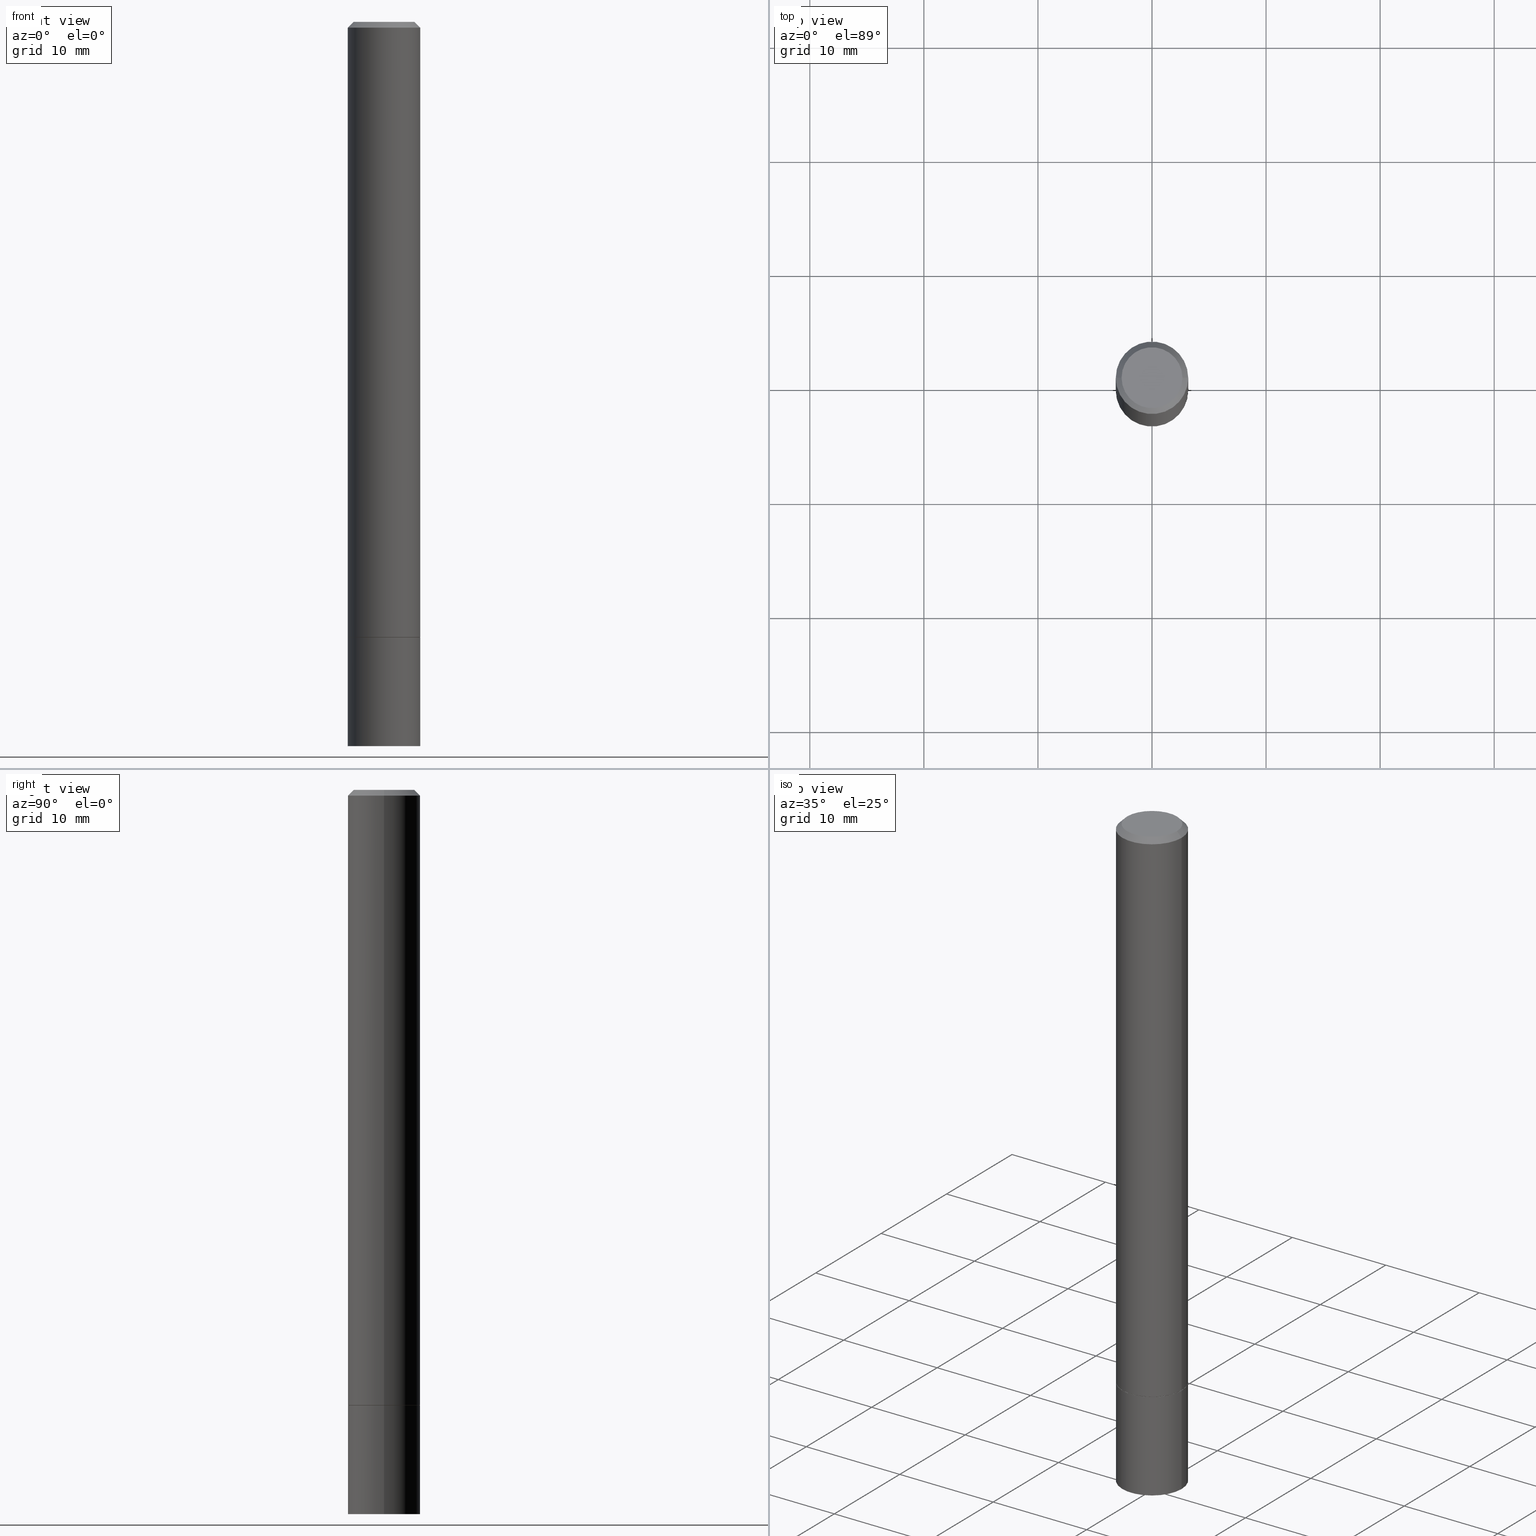
[diagram: canonical four-view strip — front | top / right | iso, engineering-drawing reading convention]
A machine part, canonical four-view strip (front | top / right | iso — engineering-drawing reading convention). The complete STEP part file that produces these views, byte-faithful:
ISO-10303-21;
HEADER;
FILE_DESCRIPTION (( 'STEP AP203' ),
    '1' );
FILE_NAME ('37008.STEP',
    '2024-02-27T20:05:14',
    ( '' ),
    ( '' ),
    'SwSTEP 2.0',
    'SolidWorks 2023',
    '' );
FILE_SCHEMA (( 'CONFIG_CONTROL_DESIGN' ));
ENDSEC;

DATA;
#1 = CYLINDRICAL_SURFACE ( 'NONE', #162, 0.1250000000000000000 ) ;
#2 = EDGE_CURVE ( 'NONE', #270, #155, #89, .T. ) ;
#3 = APPROVAL_DATE_TIME ( #282, #153 ) ;
#4 = CARTESIAN_POINT ( 'NONE',  ( 5.196621213143415268E-29, -7.419397845041685201E-15, -2.125000000000000000 ) ) ;
#5 = PERSON_AND_ORGANIZATION ( #92, #38 ) ;
#6 = ORIENTED_EDGE ( 'NONE', *, *, #66, .F. ) ;
#7 = LOCAL_TIME ( 15, 5, 14.00000000000000000, #157 ) ;
#8 = ORIENTED_EDGE ( 'NONE', *, *, #98, .T. ) ;
#9 = LINE ( 'NONE', #88, #52 ) ;
#10 = CIRCLE ( 'NONE', #215, 0.1239999999999999991 ) ;
#11 = CYLINDRICAL_SURFACE ( 'NONE', #191, 0.1250000000000000000 ) ;
#12 = VECTOR ( 'NONE', #145, 39.37007874015748143 ) ;
#13 = LINE ( 'NONE', #248, #205 ) ;
#14 = DIRECTION ( 'NONE',  ( 2.438088387897960049E-29, -3.491481338843145188E-15, -1.000000000000000000 ) ) ;
#15 = DESIGN_CONTEXT ( 'detailed design', #131, 'design' ) ;
#16 = LINE ( 'NONE', #69, #26 ) ;
#17 = DIRECTION ( 'NONE',  ( 1.000000000000000000, -6.982962677686270655E-15, 0.000000000000000000 ) ) ;
#18 = DIMENSIONAL_EXPONENTS ( 1.000000000000000000, 0.000000000000000000, 0.000000000000000000, 0.000000000000000000, 0.000000000000000000, 0.000000000000000000, 0.000000000000000000 ) ;
#19 = ORIENTED_EDGE ( 'NONE', *, *, #202, .F. ) ;
#20 = DATE_AND_TIME ( #274, #7 ) ;
#21 = CIRCLE ( 'NONE', #319, 0.1250000000000000000 ) ;
#22 = VERTEX_POINT ( 'NONE', #55 ) ;
#23 = VECTOR ( 'NONE', #62, 39.37007874015748854 ) ;
#24 = PLANE ( 'NONE',  #117 ) ;
#25 = AXIS2_PLACEMENT_3D ( 'NONE', #342, #340, #86 ) ;
#26 = VECTOR ( 'NONE', #212, 39.37007874015748143 ) ;
#27 = CALENDAR_DATE ( 2024, 27, 2 ) ;
#28 = ORIENTED_EDGE ( 'NONE', *, *, #179, .T. ) ;
#29 = PERSON_AND_ORGANIZATION_ROLE ( 'creator' ) ;
#30 = DIRECTION ( 'NONE',  ( 1.000000000000000000, -6.982962677686266711E-15, 4.876176775795935793E-29 ) ) ;
#31 = APPROVAL_ROLE ( '' ) ;
#32 = DIRECTION ( 'NONE',  ( -2.445468806185136597E-29, 3.491481338843145583E-15, 1.000000000000000000 ) ) ;
#33 = EDGE_LOOP ( 'NONE', ( #330, #107, #228, #252 ) ) ;
#34 = APPROVAL_STATUS ( 'not_yet_approved' ) ;
#35 = ORIENTED_EDGE ( 'NONE', *, *, #188, .F. ) ;
#36 = LINE ( 'NONE', #68, #12 ) ;
#37 = DIRECTION ( 'NONE',  ( -1.000000000000000000, 6.982962677686266711E-15, 0.000000000000000000 ) ) ;
#38 = ORGANIZATION ( 'UNSPECIFIED', 'UNSPECIFIED', '' ) ;
#39 = CARTESIAN_POINT ( 'NONE',  ( -0.1249999999999997224, 8.030407079339183643E-16, -0.02000000000000003511 ) ) ;
#40 = CARTESIAN_POINT ( 'NONE',  ( 5.196621213143415268E-29, -7.419397845041685201E-15, -2.125000000000000000 ) ) ;
#41 = DIRECTION ( 'NONE',  ( 2.445468806185136597E-29, -3.491481338843145583E-15, -1.000000000000000000 ) ) ;
#42 = CONICAL_SURFACE ( 'NONE', #341, 0.1249999999999997224, 0.7853981633974472798 ) ;
#43 =( NAMED_UNIT ( * ) SI_UNIT ( $, .STERADIAN. ) SOLID_ANGLE_UNIT ( ) );
#44 = DIRECTION ( 'NONE',  ( -1.000000000000000000, 6.982962677686265922E-15, -4.876176775795935793E-29 ) ) ;
#45 = ORIENTED_EDGE ( 'NONE', *, *, #174, .F. ) ;
#46 = CLOSED_SHELL ( 'NONE', ( #56, #235, #295, #167 ) ) ;
#47 = LENGTH_MEASURE_WITH_UNIT ( LENGTH_MEASURE( 0.02539999999999999897 ), #100 );
#48 = ORIENTED_EDGE ( 'NONE', *, *, #363, .T. ) ;
#49 = DIRECTION ( 'NONE',  ( 2.438088387897960049E-29, -3.491481338843145188E-15, -1.000000000000000000 ) ) ;
#50 = PERSON_AND_ORGANIZATION_ROLE ( 'design_supplier' ) ;
#51 = DIRECTION ( 'NONE',  ( -1.000000000000000000, 6.982962677686266711E-15, 0.000000000000000000 ) ) ;
#52 = VECTOR ( 'NONE', #112, 39.37007874015748143 ) ;
#53 = VERTEX_POINT ( 'NONE', #347 ) ;
#54 = PERSON_AND_ORGANIZATION_ROLE ( 'classification_officer' ) ;
#55 = CARTESIAN_POINT ( 'NONE',  ( 0.1250000000000000000, -8.288776698413625533E-15, -2.124000000000000110 ) ) ;
#56 = ADVANCED_FACE ( 'NONE', ( #318 ), #1, .T. ) ;
#57 = DIRECTION ( 'NONE',  ( -2.445468806185136597E-29, 3.491481338843145583E-15, 1.000000000000000000 ) ) ;
#58 = CONICAL_SURFACE ( 'NONE', #358, 0.1239999999999999991, 0.7853981633974141952 ) ;
#59 = CALENDAR_DATE ( 2024, 27, 2 ) ;
#60 = FACE_OUTER_BOUND ( 'NONE', #289, .T. ) ;
#61 = CIRCLE ( 'NONE', #165, 0.1250000000000000000 ) ;
#62 = DIRECTION ( 'NONE',  ( 0.7071067811865232589, -2.468850131082003836E-15, 0.7071067811865715536 ) ) ;
#63 = DIRECTION ( 'NONE',  ( -2.445468806185136597E-29, 3.491481338843145583E-15, 1.000000000000000000 ) ) ;
#64 = EDGE_CURVE ( 'NONE', #111, #155, #313, .T. ) ;
#65 = LINE ( 'NONE', #236, #113 ) ;
#66 = EDGE_CURVE ( 'NONE', #303, #222, #239, .T. ) ;
#67 = CC_DESIGN_APPROVAL ( #153, ( #172 ) ) ;
#68 = CARTESIAN_POINT ( 'NONE',  ( -0.1250000000000000000, 8.881784197001252323E-16, -6.148668862818632227E-30 ) ) ;
#69 = CARTESIAN_POINT ( 'NONE',  ( 0.1249999999999997224, -9.273918764983025741E-16, -0.02000000000000003511 ) ) ;
#70 = APPROVAL_STATUS ( 'not_yet_approved' ) ;
#71 = ORIENTED_EDGE ( 'NONE', *, *, #265, .T. ) ;
#72 = PERSON_AND_ORGANIZATION ( #92, #38 ) ;
#73 = EDGE_CURVE ( 'NONE', #82, #129, #10, .T. ) ;
#74 = APPROVAL_DATE_TIME ( #20, #354 ) ;
#75 = ORIENTED_EDGE ( 'NONE', *, *, #237, .F. ) ;
#76 = CARTESIAN_POINT ( 'NONE',  ( 5.196621213143415268E-29, -7.419397845041685201E-15, -2.125000000000000000 ) ) ;
#77 = AXIS2_PLACEMENT_3D ( 'NONE', #146, #14, #119 ) ;
#78 = ORIENTED_EDGE ( 'NONE', *, *, #188, .T. ) ;
#79 = ADVANCED_FACE ( 'NONE', ( #60 ), #182, .T. ) ;
#80 = ORIENTED_EDGE ( 'NONE', *, *, #237, .T. ) ;
#81 = EDGE_CURVE ( 'NONE', #53, #155, #9, .T. ) ;
#82 = VERTEX_POINT ( 'NONE', #284 ) ;
#83 = COORDINATED_UNIVERSAL_TIME_OFFSET ( 5, 0, .BEHIND. ) ;
#84 = ORIENTED_EDGE ( 'NONE', *, *, #73, .F. ) ;
#85 = APPROVAL_PERSON_ORGANIZATION ( #104, #115, #108 ) ;
#86 = DIRECTION ( 'NONE',  ( 1.000000000000000000, -6.982962677686266711E-15, 0.000000000000000000 ) ) ;
#87 = SHAPE_DEFINITION_REPRESENTATION ( #148, #246 ) ;
#88 = CARTESIAN_POINT ( 'NONE',  ( -0.1249999999999998612, 8.881784197001242463E-16, -6.148668862818625221E-30 ) ) ;
#89 = CIRCLE ( 'NONE', #25, 0.1249999999999997224 ) ;
#90 = DIRECTION ( 'NONE',  ( -2.445468806185136597E-29, 3.491481338843145583E-15, 1.000000000000000000 ) ) ;
#91 = CARTESIAN_POINT ( 'NONE',  ( 8.728703347108351078E-16, 0.1249999999999925754, -2.125000000000000888 ) ) ;
#92 = PERSON ( 'UNSPECIFIED', 'UNSPECIFIED', 'UNSPECIFIED', ('UNSPECIFIED'), ('UNSPECIFIED'), ('UNSPECIFIED') ) ;
#93 = DIRECTION ( 'NONE',  ( -2.445468806185136877E-29, 3.491481338843145188E-15, 1.000000000000000000 ) ) ;
#94 = DIRECTION ( 'NONE',  ( -2.445468806185136597E-29, 3.491481338843145583E-15, 1.000000000000000000 ) ) ;
#95 = CARTESIAN_POINT ( 'NONE',  ( 0.1049999999999997324, -8.238720831321557908E-16, 5.444276250344137453E-30 ) ) ;
#96 = APPLICATION_PROTOCOL_DEFINITION ( 'international standard', 'config_control_design', 1994, #131 ) ;
#97 = ORIENTED_EDGE ( 'NONE', *, *, #220, .F. ) ;
#98 = EDGE_CURVE ( 'NONE', #216, #111, #261, .T. ) ;
#99 = ORIENTED_EDGE ( 'NONE', *, *, #192, .F. ) ;
#100 =( LENGTH_UNIT ( ) NAMED_UNIT ( * ) SI_UNIT ( $, .METRE. ) );
#101 = ORIENTED_EDGE ( 'NONE', *, *, #81, .F. ) ;
#102 = CYLINDRICAL_SURFACE ( 'NONE', #308, 0.1249999999999998612 ) ;
#103 = ORIENTED_EDGE ( 'NONE', *, *, #81, .T. ) ;
#104 = PERSON_AND_ORGANIZATION ( #92, #38 ) ;
#105 = ORIENTED_EDGE ( 'NONE', *, *, #2, .T. ) ;
#106 = ADVANCED_FACE ( 'NONE', ( #310 ), #299, .T. ) ;
#107 = ORIENTED_EDGE ( 'NONE', *, *, #66, .T. ) ;
#108 = APPROVAL_ROLE ( '' ) ;
#109 = DIRECTION ( 'NONE',  ( -2.445468806185136597E-29, 3.491481338843145583E-15, 1.000000000000000000 ) ) ;
#110 = ADVANCED_FACE ( 'NONE', ( #164 ), #280, .T. ) ;
#111 = VERTEX_POINT ( 'NONE', #137 ) ;
#112 = DIRECTION ( 'NONE',  ( -2.445468806185136877E-29, 3.491481338843145188E-15, 1.000000000000000000 ) ) ;
#113 = VECTOR ( 'NONE', #93, 39.37007874015748143 ) ;
#114 = DIRECTION ( 'NONE',  ( -2.445468806185136597E-29, 3.491481338843145583E-15, 1.000000000000000000 ) ) ;
#115 = APPROVAL ( #34, 'UNSPECIFIED' ) ;
#116 = CARTESIAN_POINT ( 'NONE',  ( 5.196621213143415268E-29, -7.419397845041685201E-15, -2.125000000000000000 ) ) ;
#117 = AXIS2_PLACEMENT_3D ( 'NONE', #309, #49, #44 ) ;
#118 = DIRECTION ( 'NONE',  ( -2.445468806185136597E-29, 3.491481338843145583E-15, 1.000000000000000000 ) ) ;
#119 = DIRECTION ( 'NONE',  ( -1.000000000000000000, 6.982962677686265922E-15, -4.876176775795935793E-29 ) ) ;
#120 = AXIS2_PLACEMENT_3D ( 'NONE', #254, #283, #30 ) ;
#121 = DIRECTION ( 'NONE',  ( 1.000000000000000000, -6.982962677686270655E-15, 0.000000000000000000 ) ) ;
#122 = ADVANCED_FACE ( 'NONE', ( #255 ), #58, .T. ) ;
#123 = CARTESIAN_POINT ( 'NONE',  ( 0.1239999999999999991, -8.285285217074780948E-15, -2.125000000000000000 ) ) ;
#124 = ORIENTED_EDGE ( 'NONE', *, *, #64, .T. ) ;
#125 = PERSON_AND_ORGANIZATION ( #92, #38 ) ;
#126 = ORIENTED_EDGE ( 'NONE', *, *, #285, .T. ) ;
#127 = CC_DESIGN_APPROVAL ( #115, ( #293 ) ) ;
#128 = CALENDAR_DATE ( 2024, 27, 2 ) ;
#129 = VERTEX_POINT ( 'NONE', #355 ) ;
#130 = AXIS2_PLACEMENT_3D ( 'NONE', #140, #231, #259 ) ;
#131 = APPLICATION_CONTEXT ( 'configuration controlled 3d designs of mechanical parts and assemblies' ) ;
#132 = DIRECTION ( 'NONE',  ( -0.7071067811865232589, 7.493145998870265808E-15, 0.7071067811865715536 ) ) ;
#133 = ORIENTED_EDGE ( 'NONE', *, *, #2, .F. ) ;
#134 = EDGE_CURVE ( 'NONE', #216, #270, #16, .T. ) ;
#135 = AXIS2_PLACEMENT_3D ( 'NONE', #116, #94, #352 ) ;
#136 = EDGE_LOOP ( 'NONE', ( #200, #71, #35, #99 ) ) ;
#137 = CARTESIAN_POINT ( 'NONE',  ( -0.1049999999999997324, 7.681258945454871096E-16, -5.249639473182153965E-30 ) ) ;
#138 = PRODUCT_RELATED_PRODUCT_CATEGORY ( 'detail', '', ( #156 ) ) ;
#139 = AXIS2_PLACEMENT_3D ( 'NONE', #147, #206, #323 ) ;
#140 = CARTESIAN_POINT ( 'NONE',  ( 5.196621213143415268E-29, -7.419397845041685201E-15, -2.125000000000000000 ) ) ;
#141 = DIRECTION ( 'NONE',  ( -0.7071067811865467956, 2.468850131082249172E-15, -0.7071067811865482389 ) ) ;
#142 = SECURITY_CLASSIFICATION_LEVEL ( 'unclassified' ) ;
#143 = DIRECTION ( 'NONE',  ( 1.000000000000000000, -6.982962677686266711E-15, 4.876176775795935793E-29 ) ) ;
#144 = CIRCLE ( 'NONE', #139, 0.1250000000000000000 ) ;
#145 = DIRECTION ( 'NONE',  ( -2.445468806185136877E-29, 3.491481338843145188E-15, 1.000000000000000000 ) ) ;
#146 = CARTESIAN_POINT ( 'NONE',  ( 8.728703347108443769E-16, 0.1249999999999912709, -2.500000000000000444 ) ) ;
#147 = CARTESIAN_POINT ( 'NONE',  ( 5.196621213143415268E-29, -7.419397845041685201E-15, -2.125000000000000000 ) ) ;
#148 = PRODUCT_DEFINITION_SHAPE ( 'NONE', 'NONE',  #316 ) ;
#149 = DIRECTION ( 'NONE',  ( -2.445468806185136597E-29, 3.491481338843145583E-15, 1.000000000000000000 ) ) ;
#150 = VECTOR ( 'NONE', #141, 39.37007874015748143 ) ;
#151 = CARTESIAN_POINT ( 'NONE',  ( 5.194175744337230786E-29, -7.415906363702842194E-15, -2.124000000000000110 ) ) ;
#152 = AXIS2_PLACEMENT_3D ( 'NONE', #362, #277, #251 ) ;
#153 = APPROVAL ( #199, 'UNSPECIFIED' ) ;
#154 = CARTESIAN_POINT ( 'NONE',  ( -0.1239999999999999991, -6.538324852699160188E-15, -2.125000000000000000 ) ) ;
#155 = VERTEX_POINT ( 'NONE', #39 ) ;
#156 = PRODUCT ( '37008', '37008', '', ( #327 ) ) ;
#157 = COORDINATED_UNIVERSAL_TIME_OFFSET ( 5, 0, .BEHIND. ) ;
#158 = PERSON_AND_ORGANIZATION_ROLE ( 'creator' ) ;
#159 = EDGE_LOOP ( 'NONE', ( #275, #332, #105, #314 ) ) ;
#160 =( CONVERSION_BASED_UNIT ( 'INCH', #47 ) LENGTH_UNIT ( ) NAMED_UNIT ( #18 ) );
#161 = AXIS2_PLACEMENT_3D ( 'NONE', #173, #238, #181 ) ;
#162 = AXIS2_PLACEMENT_3D ( 'NONE', #201, #32, #143 ) ;
#163 = PERSON_AND_ORGANIZATION ( #92, #38 ) ;
#164 = FACE_OUTER_BOUND ( 'NONE', #244, .T. ) ;
#165 = AXIS2_PLACEMENT_3D ( 'NONE', #40, #149, #121 ) ;
#166 = DIRECTION ( 'NONE',  ( 2.445468806185136597E-29, -3.491481338843145583E-15, -1.000000000000000000 ) ) ;
#167 = ADVANCED_FACE ( 'NONE', ( #242 ), #11, .T. ) ;
#168 = DATE_AND_TIME ( #27, #198 ) ;
#169 = DIRECTION ( 'NONE',  ( 1.000000000000000000, -6.982962677686270655E-15, 0.000000000000000000 ) ) ;
#170 = DIRECTION ( 'NONE',  ( 1.000000000000000000, -6.982962677686262766E-15, 0.000000000000000000 ) ) ;
#171 = CARTESIAN_POINT ( 'NONE',  ( 0.000000000000000000, 0.000000000000000000, 0.000000000000000000 ) ) ;
#172 = SECURITY_CLASSIFICATION ( '', '', #142 ) ;
#173 = CARTESIAN_POINT ( 'NONE',  ( 4.890937612370281041E-31, -6.982962677686302702E-17, -0.02000000000000003511 ) ) ;
#174 = EDGE_CURVE ( 'NONE', #222, #303, #317, .T. ) ;
#175 = CARTESIAN_POINT ( 'NONE',  ( 6.113672015462842613E-29, -8.728703347107864943E-15, -2.500000000000000000 ) ) ;
#176 = CARTESIAN_POINT ( 'NONE',  ( -0.1250000000000000000, -7.185872176374649840E-15, -2.125000000000000000 ) ) ;
#177 = CC_DESIGN_PERSON_AND_ORGANIZATION_ASSIGNMENT ( #345, #54, ( #172 ) ) ;
#178 = AXIS2_PLACEMENT_3D ( 'NONE', #76, #306, #183 ) ;
#179 = EDGE_CURVE ( 'NONE', #22, #53, #344, .T. ) ;
#180 = DIRECTION ( 'NONE',  ( 1.000000000000000000, -6.982962677686270655E-15, 0.000000000000000000 ) ) ;
#181 = DIRECTION ( 'NONE',  ( 1.000000000000000000, -6.982962677686266711E-15, 0.000000000000000000 ) ) ;
#182 = CONICAL_SURFACE ( 'NONE', #130, 0.1239999999999999991, 0.7853981633974141952 ) ;
#183 = DIRECTION ( 'NONE',  ( 1.000000000000000000, -6.982962677686265922E-15, 4.876176775795935793E-29 ) ) ;
#184 = CC_DESIGN_SECURITY_CLASSIFICATION ( #172, ( #293 ) ) ;
#185 = CARTESIAN_POINT ( 'NONE',  ( -0.1250000000000000000, -7.185872176374649840E-15, -2.500000000000000000 ) ) ;
#186 = ORIENTED_EDGE ( 'NONE', *, *, #292, .F. ) ;
#187 = APPROVAL_ROLE ( '' ) ;
#188 = EDGE_CURVE ( 'NONE', #226, #197, #144, .T. ) ;
#189 = PERSON_AND_ORGANIZATION ( #92, #38 ) ;
#190 = ORIENTED_EDGE ( 'NONE', *, *, #297, .T. ) ;
#191 = AXIS2_PLACEMENT_3D ( 'NONE', #240, #267, #350 ) ;
#192 = EDGE_CURVE ( 'NONE', #222, #226, #65, .T. ) ;
#193 = DIRECTION ( 'NONE',  ( 1.000000000000000000, -6.982962677686266711E-15, 4.876176775795935793E-29 ) ) ;
#194 = ORIENTED_EDGE ( 'NONE', *, *, #292, .T. ) ;
#195 = EDGE_LOOP ( 'NONE', ( #336, #286, #124, #218 ) ) ;
#196 = COORDINATED_UNIVERSAL_TIME_OFFSET ( 5, 0, .BEHIND. ) ;
#197 = VERTEX_POINT ( 'NONE', #176 ) ;
#198 = LOCAL_TIME ( 15, 5, 14.00000000000000000, #196 ) ;
#199 = APPROVAL_STATUS ( 'not_yet_approved' ) ;
#200 = ORIENTED_EDGE ( 'NONE', *, *, #174, .T. ) ;
#201 = CARTESIAN_POINT ( 'NONE',  ( 0.000000000000000000, 0.000000000000000000, 0.000000000000000000 ) ) ;
#202 = EDGE_CURVE ( 'NONE', #129, #22, #320, .T. ) ;
#203 = PERSON_AND_ORGANIZATION ( #92, #38 ) ;
#204 = CARTESIAN_POINT ( 'NONE',  ( 5.196621213143415268E-29, -7.419397845041685201E-15, -2.125000000000000000 ) ) ;
#205 = VECTOR ( 'NONE', #219, 39.37007874015748143 ) ;
#206 = DIRECTION ( 'NONE',  ( -2.445468806185136597E-29, 3.491481338843145583E-15, 1.000000000000000000 ) ) ;
#207 = MANIFOLD_SOLID_BREP ( 'Body-Move/Copy2[2]', #273 ) ;
#208 = CARTESIAN_POINT ( 'NONE',  ( 0.1249999999999997224, -9.273918764983025741E-16, -0.02000000000000003511 ) ) ;
#209 = CC_DESIGN_PERSON_AND_ORGANIZATION_ASSIGNMENT ( #163, #50, ( #293 ) ) ;
#210 = DIRECTION ( 'NONE',  ( -2.445468806185136597E-29, 3.491481338843145583E-15, 1.000000000000000000 ) ) ;
#211 = CARTESIAN_POINT ( 'NONE',  ( 4.890937612370281041E-31, -6.982962677686302702E-17, -0.02000000000000003511 ) ) ;
#212 = DIRECTION ( 'NONE',  ( 0.7071067811865467956, -7.319954787623254468E-15, -0.7071067811865482389 ) ) ;
#213 = APPLICATION_PROTOCOL_DEFINITION ( 'international standard', 'config_control_design', 1994, #312 ) ;
#214 = MANIFOLD_SOLID_BREP ( 'Body-Move/Copy2[1]', #46 ) ;
#215 = AXIS2_PLACEMENT_3D ( 'NONE', #204, #90, #170 ) ;
#216 = VERTEX_POINT ( 'NONE', #95 ) ;
#217 = PERSON_AND_ORGANIZATION_ROLE ( 'design_owner' ) ;
#218 = ORIENTED_EDGE ( 'NONE', *, *, #220, .T. ) ;
#219 = DIRECTION ( 'NONE',  ( -2.445468806185136877E-29, 3.491481338843145188E-15, 1.000000000000000000 ) ) ;
#220 = EDGE_CURVE ( 'NONE', #155, #270, #326, .T. ) ;
#221 = ORIENTED_EDGE ( 'NONE', *, *, #297, .F. ) ;
#222 = VERTEX_POINT ( 'NONE', #296 ) ;
#223 = AXIS2_PLACEMENT_3D ( 'NONE', #175, #210, #180 ) ;
#224 = CARTESIAN_POINT ( 'NONE',  ( -0.1249999999999997224, 8.030407079339183643E-16, -0.02000000000000003511 ) ) ;
#225 = CALENDAR_DATE ( 2024, 27, 2 ) ;
#226 = VERTEX_POINT ( 'NONE', #349 ) ;
#227 = CIRCLE ( 'NONE', #287, 0.1049999999999997324 ) ;
#228 = ORIENTED_EDGE ( 'NONE', *, *, #192, .T. ) ;
#229 = AXIS2_PLACEMENT_3D ( 'NONE', #262, #63, #17 ) ;
#230 = DATE_TIME_ROLE ( 'classification_date' ) ;
#231 = DIRECTION ( 'NONE',  ( -2.445468806185136597E-29, 3.491481338843145583E-15, 1.000000000000000000 ) ) ;
#232 = ADVANCED_FACE ( 'NONE', ( #298 ), #42, .T. ) ;
#233 = DIRECTION ( 'NONE',  ( 1.000000000000000000, -6.982962677686265922E-15, 4.876176775795935793E-29 ) ) ;
#234 = DIRECTION ( 'NONE',  ( -2.445468806185136597E-29, 3.491481338843145583E-15, 1.000000000000000000 ) ) ;
#235 = ADVANCED_FACE ( 'NONE', ( #291 ), #294, .T. ) ;
#236 = CARTESIAN_POINT ( 'NONE',  ( 0.1250000000000000000, -8.728703347107833388E-16, 6.095220969744919741E-30 ) ) ;
#237 = EDGE_CURVE ( 'NONE', #129, #82, #247, .T. ) ;
#238 = DIRECTION ( 'NONE',  ( -2.445468806185136597E-29, 3.491481338843145583E-15, 1.000000000000000000 ) ) ;
#239 = CIRCLE ( 'NONE', #256, 0.1250000000000000000 ) ;
#240 = CARTESIAN_POINT ( 'NONE',  ( 0.000000000000000000, 0.000000000000000000, 0.000000000000000000 ) ) ;
#241 = LOCAL_TIME ( 15, 5, 14.00000000000000000, #83 ) ;
#242 = FACE_OUTER_BOUND ( 'NONE', #33, .T. ) ;
#243 = EDGE_CURVE ( 'NONE', #111, #216, #227, .T. ) ;
#244 = EDGE_LOOP ( 'NONE', ( #28, #103, #133, #221 ) ) ;
#245 = LINE ( 'NONE', #154, #281 ) ;
#246 = ADVANCED_BREP_SHAPE_REPRESENTATION ( '37008', ( #214, #207, #152 ), #300 ) ;
#247 = CIRCLE ( 'NONE', #135, 0.1239999999999999991 ) ;
#248 = CARTESIAN_POINT ( 'NONE',  ( 0.1249999999999998612, -8.728703347107823527E-16, 6.095220969744912735E-30 ) ) ;
#249 = EDGE_LOOP ( 'NONE', ( #101, #194, #190, #97 ) ) ;
#250 = DATE_AND_TIME ( #128, #360 ) ;
#251 = DIRECTION ( 'NONE',  ( 1.000000000000000000, 0.000000000000000000, 0.000000000000000000 ) ) ;
#252 = ORIENTED_EDGE ( 'NONE', *, *, #285, .F. ) ;
#253 = APPROVAL_PERSON_ORGANIZATION ( #203, #153, #31 ) ;
#254 = CARTESIAN_POINT ( 'NONE',  ( 0.000000000000000000, 0.000000000000000000, 0.000000000000000000 ) ) ;
#255 = FACE_OUTER_BOUND ( 'NONE', #260, .T. ) ;
#256 = AXIS2_PLACEMENT_3D ( 'NONE', #315, #57, #169 ) ;
#257 = DATE_AND_TIME ( #225, #348 ) ;
#258 = EDGE_LOOP ( 'NONE', ( #78, #126 ) ) ;
#259 = DIRECTION ( 'NONE',  ( 1.000000000000000000, -6.982962677686262766E-15, 0.000000000000000000 ) ) ;
#260 = EDGE_LOOP ( 'NONE', ( #80, #48, #272, #19 ) ) ;
#261 = CIRCLE ( 'NONE', #311, 0.1049999999999997324 ) ;
#262 = CARTESIAN_POINT ( 'NONE',  ( 5.194175744337230786E-29, -7.415906363702842194E-15, -2.124000000000000110 ) ) ;
#263 = AXIS2_PLACEMENT_3D ( 'NONE', #91, #321, #264 ) ;
#264 = DIRECTION ( 'NONE',  ( -1.000000000000000000, 6.982962677686265922E-15, -4.876176775795935793E-29 ) ) ;
#265 = EDGE_CURVE ( 'NONE', #303, #197, #36, .T. ) ;
#266 = DIRECTION ( 'NONE',  ( 1.000000000000000000, -6.982962677686262766E-15, 0.000000000000000000 ) ) ;
#267 = DIRECTION ( 'NONE',  ( -2.445468806185136597E-29, 3.491481338843145583E-15, 1.000000000000000000 ) ) ;
#268 = DIRECTION ( 'NONE',  ( 1.000000000000000000, -6.982962677686270655E-15, 0.000000000000000000 ) ) ;
#269 = PLANE ( 'NONE',  #178 ) ;
#270 = VERTEX_POINT ( 'NONE', #208 ) ;
#271 = CC_DESIGN_PERSON_AND_ORGANIZATION_ASSIGNMENT ( #5, #29, ( #293 ) ) ;
#272 = ORIENTED_EDGE ( 'NONE', *, *, #179, .F. ) ;
#273 = CLOSED_SHELL ( 'NONE', ( #122, #110, #106, #232, #302, #79, #305, #339 ) ) ;
#274 = CALENDAR_DATE ( 2024, 27, 2 ) ;
#275 = ORIENTED_EDGE ( 'NONE', *, *, #98, .F. ) ;
#276 = COORDINATED_UNIVERSAL_TIME_OFFSET ( 5, 0, .BEHIND. ) ;
#277 = DIRECTION ( 'NONE',  ( 0.000000000000000000, 0.000000000000000000, 1.000000000000000000 ) ) ;
#278 = EDGE_LOOP ( 'NONE', ( #361, #8 ) ) ;
#279 = COORDINATED_UNIVERSAL_TIME_OFFSET ( 5, 0, .BEHIND. ) ;
#280 = CYLINDRICAL_SURFACE ( 'NONE', #120, 0.1249999999999998612 ) ;
#281 = VECTOR ( 'NONE', #132, 39.37007874015748854 ) ;
#282 = DATE_AND_TIME ( #59, #241 ) ;
#283 = DIRECTION ( 'NONE',  ( -2.445468806185136597E-29, 3.491481338843145583E-15, 1.000000000000000000 ) ) ;
#284 = CARTESIAN_POINT ( 'NONE',  ( -0.1239999999999999991, -6.533026398350938575E-15, -2.125000000000000000 ) ) ;
#285 = EDGE_CURVE ( 'NONE', #197, #226, #61, .T. ) ;
#286 = ORIENTED_EDGE ( 'NONE', *, *, #243, .F. ) ;
#287 = AXIS2_PLACEMENT_3D ( 'NONE', #290, #118, #324 ) ;
#288 = CC_DESIGN_PERSON_AND_ORGANIZATION_ASSIGNMENT ( #189, #158, ( #316 ) ) ;
#289 = EDGE_LOOP ( 'NONE', ( #357, #364, #346, #186 ) ) ;
#290 = CARTESIAN_POINT ( 'NONE',  ( 0.000000000000000000, 0.000000000000000000, 0.000000000000000000 ) ) ;
#291 = FACE_OUTER_BOUND ( 'NONE', #366, .T. ) ;
#292 = EDGE_CURVE ( 'NONE', #53, #22, #21, .T. ) ;
#293 = PRODUCT_DEFINITION_FORMATION_WITH_SPECIFIED_SOURCE ( 'ANY', '', #156, .NOT_KNOWN. ) ;
#294 = PLANE ( 'NONE',  #77 ) ;
#295 = ADVANCED_FACE ( 'NONE', ( #353 ), #325, .F. ) ;
#296 = CARTESIAN_POINT ( 'NONE',  ( 0.1250000000000000000, -9.601573681818648281E-15, -2.500000000000000000 ) ) ;
#297 = EDGE_CURVE ( 'NONE', #22, #270, #13, .T. ) ;
#298 = FACE_OUTER_BOUND ( 'NONE', #195, .T. ) ;
#299 = CONICAL_SURFACE ( 'NONE', #351, 0.1249999999999997224, 0.7853981633974472798 ) ;
#300 =( GEOMETRIC_REPRESENTATION_CONTEXT ( 3 ) GLOBAL_UNCERTAINTY_ASSIGNED_CONTEXT ( ( #322 ) ) GLOBAL_UNIT_ASSIGNED_CONTEXT ( ( #160, #359, #43 ) ) REPRESENTATION_CONTEXT ( 'NONE', 'WORKASPACE' ) );
#301 = DIRECTION ( 'NONE',  ( -2.445468806185136597E-29, 3.491481338843145583E-15, 1.000000000000000000 ) ) ;
#302 = ADVANCED_FACE ( 'NONE', ( #328 ), #102, .T. ) ;
#303 = VERTEX_POINT ( 'NONE', #185 ) ;
#304 = FACE_OUTER_BOUND ( 'NONE', #334, .T. ) ;
#305 = ADVANCED_FACE ( 'NONE', ( #304 ), #269, .F. ) ;
#306 = DIRECTION ( 'NONE',  ( -2.438088387897960049E-29, 3.491481338843145188E-15, 1.000000000000000000 ) ) ;
#307 = CC_DESIGN_DATE_AND_TIME_ASSIGNMENT ( #250, #365, ( #316 ) ) ;
#308 = AXIS2_PLACEMENT_3D ( 'NONE', #333, #301, #193 ) ;
#309 = CARTESIAN_POINT ( 'NONE',  ( 7.332110811570560522E-16, 0.1049999999999997324, -3.666055405785293573E-16 ) ) ;
#310 = FACE_OUTER_BOUND ( 'NONE', #159, .T. ) ;
#311 = AXIS2_PLACEMENT_3D ( 'NONE', #171, #114, #233 ) ;
#312 = APPLICATION_CONTEXT ( 'configuration controlled 3d designs of mechanical parts and assemblies' ) ;
#313 = LINE ( 'NONE', #224, #150 ) ;
#314 = ORIENTED_EDGE ( 'NONE', *, *, #64, .F. ) ;
#315 = CARTESIAN_POINT ( 'NONE',  ( 6.113672015462842613E-29, -8.728703347107864943E-15, -2.500000000000000000 ) ) ;
#316 = PRODUCT_DEFINITION ( 'UNKNOWN', '', #293, #15 ) ;
#317 = CIRCLE ( 'NONE', #223, 0.1250000000000000000 ) ;
#318 = FACE_OUTER_BOUND ( 'NONE', #136, .T. ) ;
#319 = AXIS2_PLACEMENT_3D ( 'NONE', #151, #234, #268 ) ;
#320 = LINE ( 'NONE', #123, #23 ) ;
#321 = DIRECTION ( 'NONE',  ( 2.438088387897960049E-29, -3.491481338843145188E-15, -1.000000000000000000 ) ) ;
#322 = UNCERTAINTY_MEASURE_WITH_UNIT (LENGTH_MEASURE( 1.000000000000000082E-05 ), #160, 'distance_accuracy_value', 'NONE');
#323 = DIRECTION ( 'NONE',  ( 1.000000000000000000, -6.982962677686270655E-15, 0.000000000000000000 ) ) ;
#324 = DIRECTION ( 'NONE',  ( 1.000000000000000000, -6.982962677686265922E-15, 4.876176775795935793E-29 ) ) ;
#325 = PLANE ( 'NONE',  #263 ) ;
#326 = CIRCLE ( 'NONE', #161, 0.1249999999999997224 ) ;
#327 = MECHANICAL_CONTEXT ( 'NONE', #312, 'mechanical' ) ;
#328 = FACE_OUTER_BOUND ( 'NONE', #249, .T. ) ;
#329 = CC_DESIGN_APPROVAL ( #354, ( #316 ) ) ;
#330 = ORIENTED_EDGE ( 'NONE', *, *, #265, .F. ) ;
#331 = FACE_OUTER_BOUND ( 'NONE', #278, .T. ) ;
#332 = ORIENTED_EDGE ( 'NONE', *, *, #134, .T. ) ;
#333 = CARTESIAN_POINT ( 'NONE',  ( 0.000000000000000000, 0.000000000000000000, 0.000000000000000000 ) ) ;
#334 = EDGE_LOOP ( 'NONE', ( #75, #84 ) ) ;
#335 = APPROVAL_PERSON_ORGANIZATION ( #72, #354, #187 ) ;
#336 = ORIENTED_EDGE ( 'NONE', *, *, #134, .F. ) ;
#337 = CARTESIAN_POINT ( 'NONE',  ( 4.890937612370281041E-31, -6.982962677686302702E-17, -0.02000000000000003511 ) ) ;
#338 = APPROVAL_DATE_TIME ( #257, #115 ) ;
#339 = ADVANCED_FACE ( 'NONE', ( #331 ), #24, .F. ) ;
#340 = DIRECTION ( 'NONE',  ( -2.445468806185136597E-29, 3.491481338843145583E-15, 1.000000000000000000 ) ) ;
#341 = AXIS2_PLACEMENT_3D ( 'NONE', #211, #41, #37 ) ;
#342 = CARTESIAN_POINT ( 'NONE',  ( 4.890937612370281041E-31, -6.982962677686302702E-17, -0.02000000000000003511 ) ) ;
#343 = CC_DESIGN_PERSON_AND_ORGANIZATION_ASSIGNMENT ( #125, #217, ( #156 ) ) ;
#344 = CIRCLE ( 'NONE', #229, 0.1250000000000000000 ) ;
#345 = PERSON_AND_ORGANIZATION ( #92, #38 ) ;
#346 = ORIENTED_EDGE ( 'NONE', *, *, #202, .T. ) ;
#347 = CARTESIAN_POINT ( 'NONE',  ( -0.1250000000000000000, -2.854689575539722781E-15, -2.124000000000000110 ) ) ;
#348 = LOCAL_TIME ( 15, 5, 14.00000000000000000, #279 ) ;
#349 = CARTESIAN_POINT ( 'NONE',  ( 0.1250000000000000000, -8.292268179752468540E-15, -2.125000000000000000 ) ) ;
#350 = DIRECTION ( 'NONE',  ( 1.000000000000000000, -6.982962677686266711E-15, 4.876176775795935793E-29 ) ) ;
#351 = AXIS2_PLACEMENT_3D ( 'NONE', #337, #166, #51 ) ;
#352 = DIRECTION ( 'NONE',  ( 1.000000000000000000, -6.982962677686262766E-15, 0.000000000000000000 ) ) ;
#353 = FACE_OUTER_BOUND ( 'NONE', #258, .T. ) ;
#354 = APPROVAL ( #70, 'UNSPECIFIED' ) ;
#355 = CARTESIAN_POINT ( 'NONE',  ( 0.1239999999999999991, -8.285285217074780948E-15, -2.125000000000000000 ) ) ;
#356 = CC_DESIGN_DATE_AND_TIME_ASSIGNMENT ( #168, #230, ( #172 ) ) ;
#357 = ORIENTED_EDGE ( 'NONE', *, *, #363, .F. ) ;
#358 = AXIS2_PLACEMENT_3D ( 'NONE', #4, #109, #266 ) ;
#359 =( NAMED_UNIT ( * ) PLANE_ANGLE_UNIT ( ) SI_UNIT ( $, .RADIAN. ) );
#360 = LOCAL_TIME ( 15, 5, 14.00000000000000000, #276 ) ;
#361 = ORIENTED_EDGE ( 'NONE', *, *, #243, .T. ) ;
#362 = CARTESIAN_POINT ( 'NONE',  ( 0.000000000000000000, 0.000000000000000000, 0.000000000000000000 ) ) ;
#363 = EDGE_CURVE ( 'NONE', #82, #53, #245, .T. ) ;
#364 = ORIENTED_EDGE ( 'NONE', *, *, #73, .T. ) ;
#365 = DATE_TIME_ROLE ( 'creation_date' ) ;
#366 = EDGE_LOOP ( 'NONE', ( #45, #6 ) ) ;
ENDSEC;
END-ISO-10303-21;
